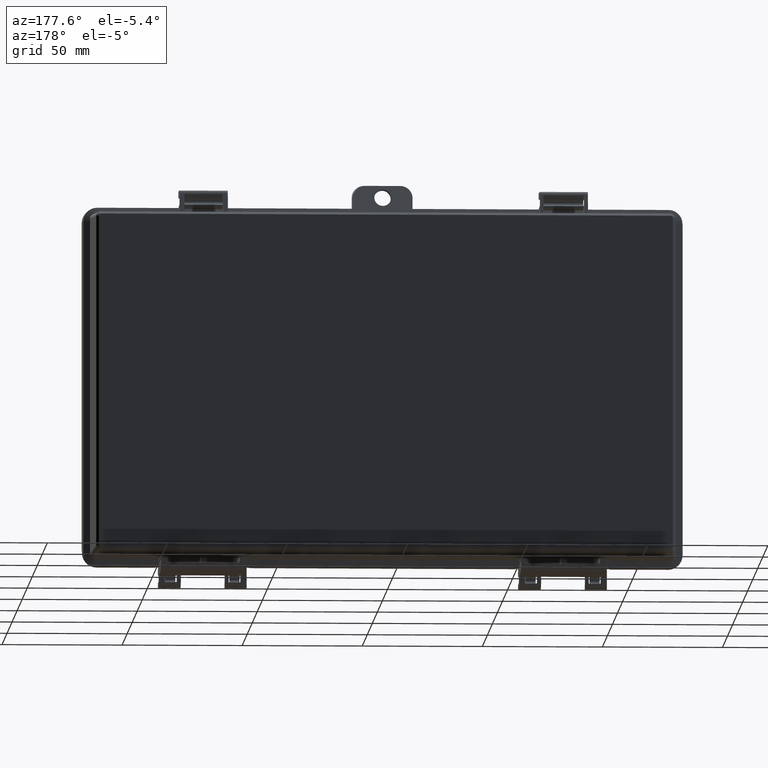
[diagram: clean part render]
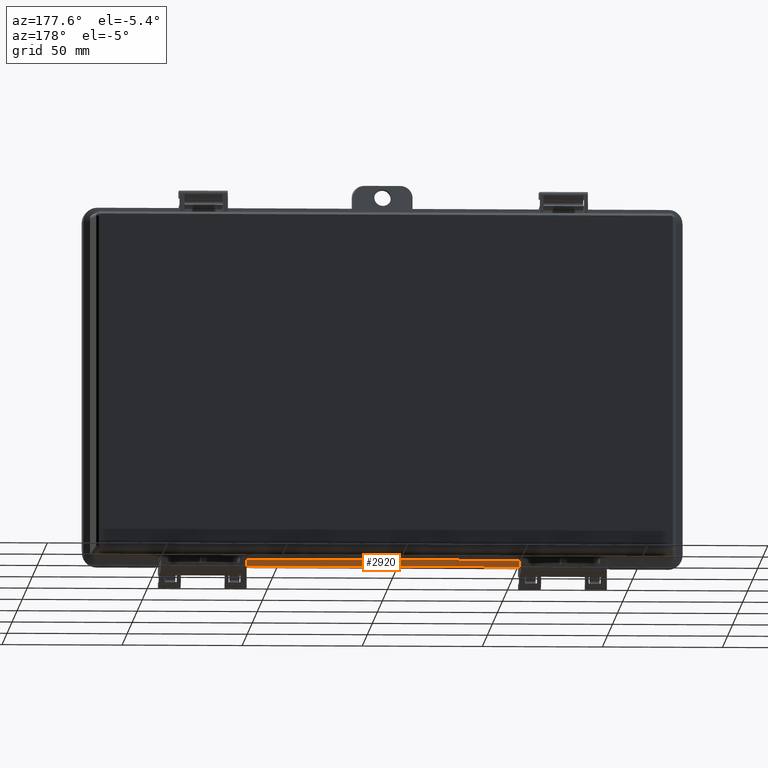
[diagram: same view with one face highlighted and labeled with its STEP entity id]
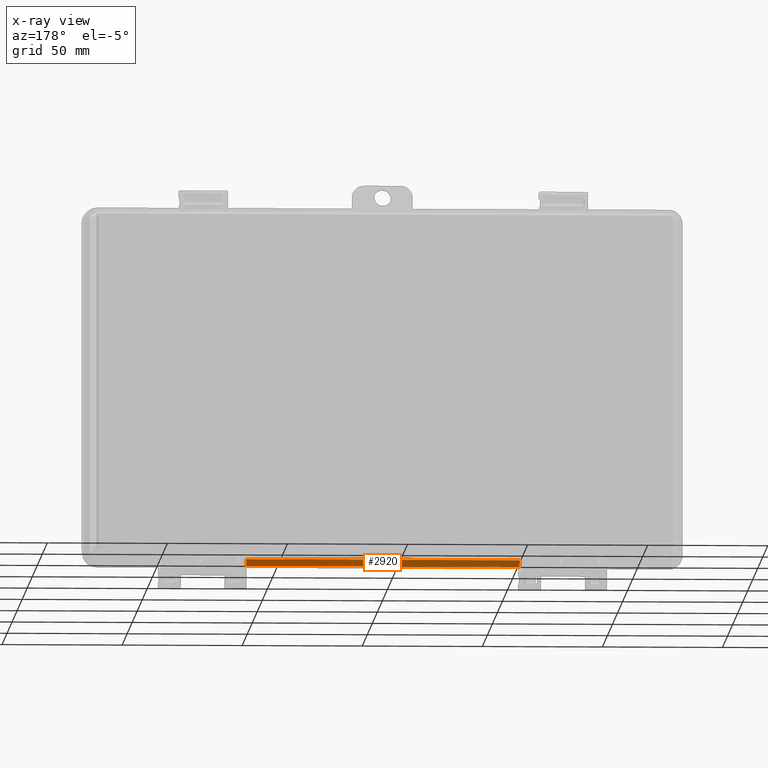
[diagram: x-ray of the same camera — body ghosted, the highlighted face saturated]
A machine part, auxiliary view. The second image highlights one B-rep face of the part: STEP entity #2920.
The next image is the same camera in x-ray: the body ghosted, the highlighted face saturated — about 0% of this face is hidden behind the body in this view.
In plain terms, the highlighted planar face has unit normal (0, -0.9563, 0.2924).
Its self-contained STEP definition (entity closure, byte-faithful):
#12 = EDGE_LOOP ( 'NONE', ( #9266, #9267, #9268, #9270 ) ) ;
#440 = VERTEX_POINT ( 'NONE', #3825 ) ;
#939 = VERTEX_POINT ( 'NONE', #6601 ) ;
#2529 = EDGE_CURVE ( 'NONE', #13537, #13793, #9571, .T. ) ;
#2920 = ADVANCED_FACE ( 'NONE', ( #4507 ), #5139, .F. ) ;
#3038 = EDGE_CURVE ( 'NONE', #939, #13537, #5926, .T. ) ;
#3278 = EDGE_CURVE ( 'NONE', #939, #440, #6113, .T. ) ;
#3279 = EDGE_CURVE ( 'NONE', #440, #13793, #6114, .T. ) ;
#3825 = CARTESIAN_POINT ( 'NONE',  ( 56.82115112668005700, 6.127928545600722600, -72.01949943865969300 ) ) ;
#4133 = VECTOR ( 'NONE', #6858, 1000.000000000000000 ) ;
#4507 = FACE_OUTER_BOUND ( 'NONE', #12, .T. ) ;
#5139 = PLANE ( 'NONE',  #11716 ) ;
#5140 = CARTESIAN_POINT ( 'NONE',  ( -119.0000000000000100, 6.500000000000000000, -70.80250854777460700 ) ) ;
#5141 = DIRECTION ( 'NONE',  ( 0.0000000000000000000, -0.9563047559630362100, 0.2923717047227344900 ) ) ;
#5142 = DIRECTION ( 'NONE',  ( 0.0000000000000000000, -0.2923717047227344900, -0.9563047559630362100 ) ) ;
#5926 = LINE ( 'NONE', #12461, #12972 ) ;
#6113 = LINE ( 'NONE', #7188, #13163 ) ;
#6114 = LINE ( 'NONE', #7190, #13164 ) ;
#6601 = CARTESIAN_POINT ( 'NONE',  ( -56.82115112668009300, 6.127928545600726200, -72.01949943865969300 ) ) ;
#6858 = DIRECTION ( 'NONE',  ( 1.000000000000000000, -0.0000000000000000000, -0.0000000000000000000 ) ) ;
#6938 = CARTESIAN_POINT ( 'NONE',  ( 119.0000000000000100, 5.301644558294508000, -74.72215258215175000 ) ) ;
#7188 = CARTESIAN_POINT ( 'NONE',  ( -119.0000000000000100, 6.127928545600728900, -72.01949943865967900 ) ) ;
#7189 = DIRECTION ( 'NONE',  ( 1.000000000000000000, -3.534388960000994000E-017, -1.156046538456078700E-016 ) ) ;
#7190 = CARTESIAN_POINT ( 'NONE',  ( 56.79937628357333100, 5.712439787927349000, -73.37850192964639000 ) ) ;
#7191 = DIRECTION ( 'NONE',  ( -0.01532075336748849900, -0.2923373891640196900, -0.9561925148279593100 ) ) ;
#8607 = CARTESIAN_POINT ( 'NONE',  ( -56.77784741784823600, 5.301644558294508000, -74.72215258215175000 ) ) ;
#8684 = CARTESIAN_POINT ( 'NONE',  ( 56.77784741784822100, 5.301644558294508000, -74.72215258215175000 ) ) ;
#9266 = ORIENTED_EDGE ( 'NONE', *, *, #2529, .F. ) ;
#9267 = ORIENTED_EDGE ( 'NONE', *, *, #3038, .F. ) ;
#9268 = ORIENTED_EDGE ( 'NONE', *, *, #3278, .T. ) ;
#9270 = ORIENTED_EDGE ( 'NONE', *, *, #3279, .T. ) ;
#9571 = LINE ( 'NONE', #6938, #4133 ) ;
#11716 = AXIS2_PLACEMENT_3D ( 'NONE', #5140, #5141, #5142 ) ;
#12461 = CARTESIAN_POINT ( 'NONE',  ( -56.83786422785477300, 6.446833513590763500, -70.97640828906185100 ) ) ;
#12462 = DIRECTION ( 'NONE',  ( 0.01532075336748849900, -0.2923373891640196900, -0.9561925148279593100 ) ) ;
#12972 = VECTOR ( 'NONE', #12462, 1000.000000000000100 ) ;
#13163 = VECTOR ( 'NONE', #7189, 1000.000000000000000 ) ;
#13164 = VECTOR ( 'NONE', #7191, 1000.000000000000100 ) ;
#13537 = VERTEX_POINT ( 'NONE', #8607 ) ;
#13793 = VERTEX_POINT ( 'NONE', #8684 ) ;